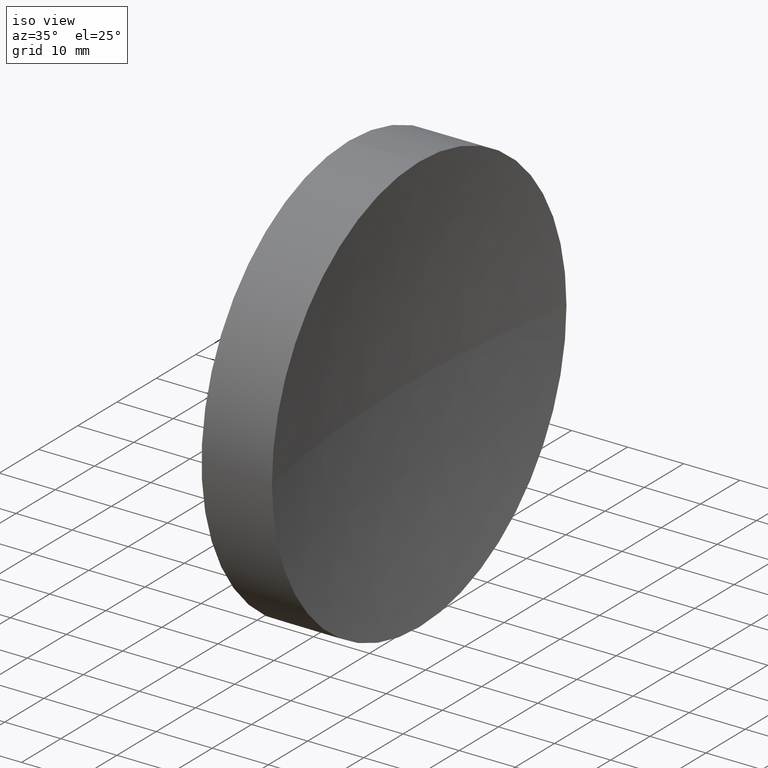
[diagram: clean part render]
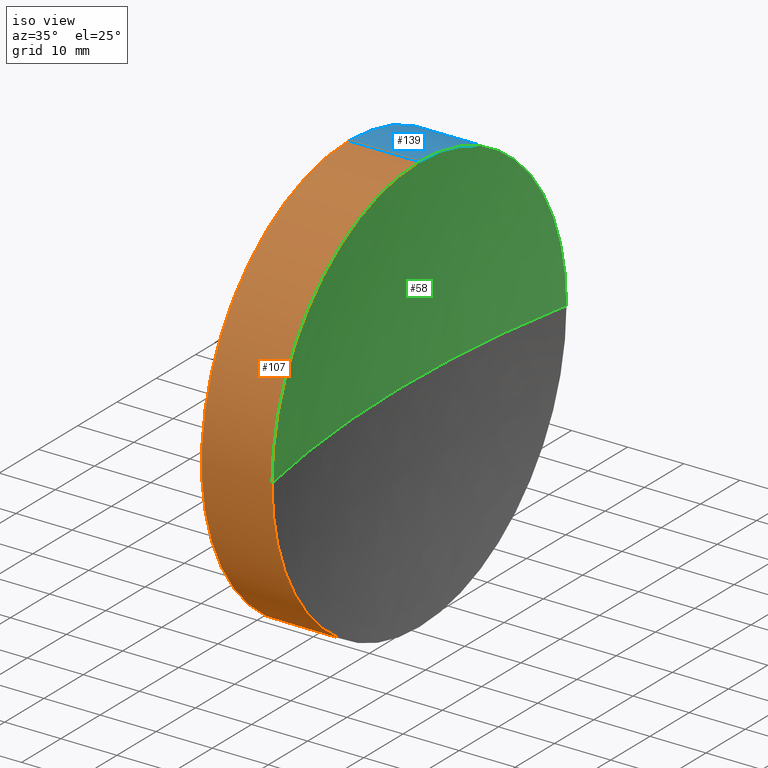
[diagram: same view with three faces highlighted in distinct colors, each labeled with its STEP entity id]
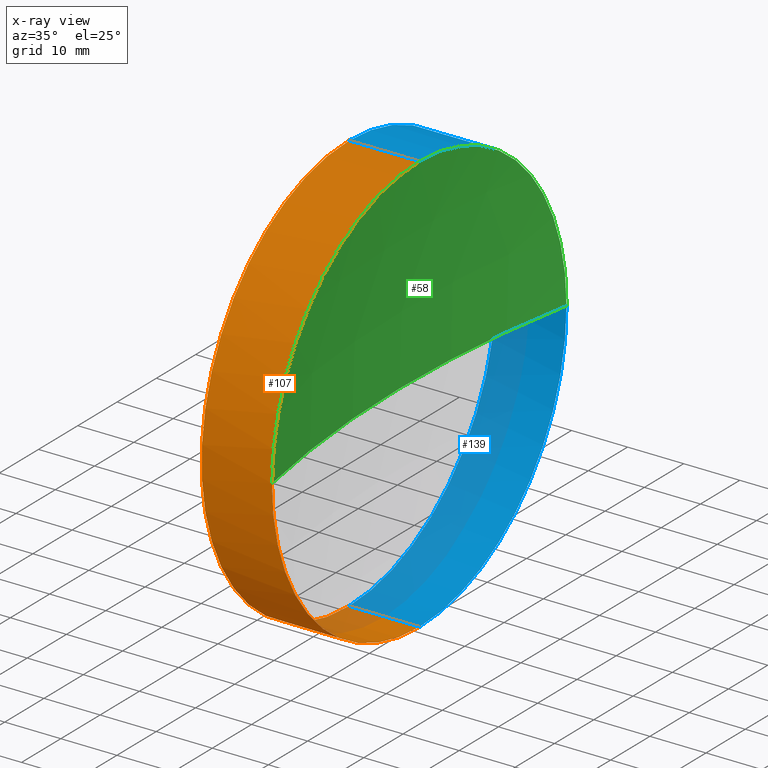
[diagram: x-ray of the same camera — body ghosted, the three highlighted faces saturated]
A machine part, iso view with three faces highlighted in distinct colors.
The next image is the same camera in x-ray (body ghosted, the three faces saturated) — at least one of them is partly hidden behind the body in this view.
Their STEP definitions:

[orange] entity #107 — the highlighted cylindrical surface (partial cylindrical patch) has radius 37.5 mm, axis along (-1, -0, -0).
#4 = DIRECTION ( 'NONE',  ( -1.000000000000000000, -0.0000000000000000000, -0.0000000000000000000 ) ) ;
#6 = DIRECTION ( 'NONE',  ( 0.0000000000000000000, 0.0000000000000000000, 1.000000000000000000 ) ) ;
#8 = VERTEX_POINT ( 'NONE', #102 ) ;
#12 = CIRCLE ( 'NONE', #125, 37.50000000000000700 ) ;
#13 = VERTEX_POINT ( 'NONE', #62 ) ;
#20 = CARTESIAN_POINT ( 'NONE',  ( 217.9702860043302100, 138.7560422467448700, 37.50000000000000700 ) ) ;
#23 = VERTEX_POINT ( 'NONE', #99 ) ;
#28 = CARTESIAN_POINT ( 'NONE',  ( 242.7466913625733000, 138.7560422467448700, 0.0000000000000000000 ) ) ;
#34 = DIRECTION ( 'NONE',  ( 0.0000000000000000000, 0.0000000000000000000, 1.000000000000000000 ) ) ;
#35 = CARTESIAN_POINT ( 'NONE',  ( 230.1996119052661200, 138.7560422467448700, 37.50000000000000700 ) ) ;
#36 = AXIS2_PLACEMENT_3D ( 'NONE', #144, #4, #34 ) ;
#38 = ORIENTED_EDGE ( 'NONE', *, *, #142, .T. ) ;
#41 = DIRECTION ( 'NONE',  ( -1.000000000000000000, -0.0000000000000000000, -0.0000000000000000000 ) ) ;
#44 = CIRCLE ( 'NONE', #36, 37.50000000000000700 ) ;
#47 = EDGE_LOOP ( 'NONE', ( #109, #171, #38, #126, #140 ) ) ;
#50 = AXIS2_PLACEMENT_3D ( 'NONE', #147, #72, #178 ) ;
#56 = DIRECTION ( 'NONE',  ( -1.000000000000000000, -0.0000000000000000000, -0.0000000000000000000 ) ) ;
#57 = EDGE_CURVE ( 'NONE', #13, #162, #165, .T. ) ;
#59 = AXIS2_PLACEMENT_3D ( 'NONE', #157, #56, #175 ) ;
#62 = CARTESIAN_POINT ( 'NONE',  ( 242.7466913625733000, 138.7560422467448700, 37.50000000000000700 ) ) ;
#63 = VERTEX_POINT ( 'NONE', #101 ) ;
#68 = VECTOR ( 'NONE', #112, 1000.000000000000000 ) ;
#72 = DIRECTION ( 'NONE',  ( -1.000000000000000000, -0.0000000000000000000, -0.0000000000000000000 ) ) ;
#96 = CARTESIAN_POINT ( 'NONE',  ( 217.9702860043302100, 138.7560422467448700, -37.50000000000000700 ) ) ;
#99 = CARTESIAN_POINT ( 'NONE',  ( 242.7466913625733000, 138.7560422467448700, -37.50000000000000700 ) ) ;
#101 = CARTESIAN_POINT ( 'NONE',  ( 242.7466913625733300, 101.2560422467446800, -4.592425496802582300E-015 ) ) ;
#102 = CARTESIAN_POINT ( 'NONE',  ( 230.1996119052661200, 138.7560422467448700, -37.50000000000000700 ) ) ;
#107 = ADVANCED_FACE ( 'NONE', ( #129 ), #164, .T. ) ;
#109 = ORIENTED_EDGE ( 'NONE', *, *, #173, .F. ) ;
#112 = DIRECTION ( 'NONE',  ( -1.000000000000000000, -0.0000000000000000000, -0.0000000000000000000 ) ) ;
#125 = AXIS2_PLACEMENT_3D ( 'NONE', #28, #41, #6 ) ;
#126 = ORIENTED_EDGE ( 'NONE', *, *, #57, .T. ) ;
#129 = FACE_OUTER_BOUND ( 'NONE', #47, .T. ) ;
#136 = DIRECTION ( 'NONE',  ( -1.000000000000000000, -0.0000000000000000000, -0.0000000000000000000 ) ) ;
#140 = ORIENTED_EDGE ( 'NONE', *, *, #153, .F. ) ;
#142 = EDGE_CURVE ( 'NONE', #63, #13, #12, .T. ) ;
#144 = CARTESIAN_POINT ( 'NONE',  ( 242.7466913625733000, 138.7560422467448700, 0.0000000000000000000 ) ) ;
#147 = CARTESIAN_POINT ( 'NONE',  ( 217.9702860043302100, 138.7560422467448700, 0.0000000000000000000 ) ) ;
#152 = LINE ( 'NONE', #96, #68 ) ;
#153 = EDGE_CURVE ( 'NONE', #8, #162, #168, .T. ) ;
#157 = CARTESIAN_POINT ( 'NONE',  ( 230.1996119052661200, 138.7560422467448700, 0.0000000000000000000 ) ) ;
#161 = EDGE_CURVE ( 'NONE', #23, #63, #44, .T. ) ;
#162 = VERTEX_POINT ( 'NONE', #35 ) ;
#164 = CYLINDRICAL_SURFACE ( 'NONE', #50, 37.50000000000000700 ) ;
#165 = LINE ( 'NONE', #20, #169 ) ;
#168 = CIRCLE ( 'NONE', #59, 37.50000000000000700 ) ;
#169 = VECTOR ( 'NONE', #136, 1000.000000000000000 ) ;
#171 = ORIENTED_EDGE ( 'NONE', *, *, #161, .T. ) ;
#173 = EDGE_CURVE ( 'NONE', #23, #8, #152, .T. ) ;
#175 = DIRECTION ( 'NONE',  ( 0.0000000000000000000, 0.0000000000000000000, 1.000000000000000000 ) ) ;
#178 = DIRECTION ( 'NONE',  ( 0.0000000000000000000, 0.0000000000000000000, 1.000000000000000000 ) ) ;

[blue] entity #139 — the highlighted cylindrical surface (partial cylindrical patch) has radius 37.5 mm, axis along (-1, -0, -0).
#8 = VERTEX_POINT ( 'NONE', #102 ) ;
#13 = VERTEX_POINT ( 'NONE', #62 ) ;
#18 = DIRECTION ( 'NONE',  ( -1.000000000000000000, -0.0000000000000000000, -0.0000000000000000000 ) ) ;
#20 = CARTESIAN_POINT ( 'NONE',  ( 217.9702860043302100, 138.7560422467448700, 37.50000000000000700 ) ) ;
#23 = VERTEX_POINT ( 'NONE', #99 ) ;
#27 = ORIENTED_EDGE ( 'NONE', *, *, #116, .T. ) ;
#35 = CARTESIAN_POINT ( 'NONE',  ( 230.1996119052661200, 138.7560422467448700, 37.50000000000000700 ) ) ;
#48 = CYLINDRICAL_SURFACE ( 'NONE', #179, 37.50000000000000700 ) ;
#54 = FACE_OUTER_BOUND ( 'NONE', #122, .T. ) ;
#55 = ORIENTED_EDGE ( 'NONE', *, *, #57, .F. ) ;
#57 = EDGE_CURVE ( 'NONE', #13, #162, #165, .T. ) ;
#62 = CARTESIAN_POINT ( 'NONE',  ( 242.7466913625733000, 138.7560422467448700, 37.50000000000000700 ) ) ;
#67 = CIRCLE ( 'NONE', #104, 37.50000000000000700 ) ;
#68 = VECTOR ( 'NONE', #112, 1000.000000000000000 ) ;
#70 = DIRECTION ( 'NONE',  ( -1.000000000000000000, -0.0000000000000000000, -0.0000000000000000000 ) ) ;
#81 = DIRECTION ( 'NONE',  ( 0.0000000000000000000, 0.0000000000000000000, 1.000000000000000000 ) ) ;
#87 = CARTESIAN_POINT ( 'NONE',  ( 230.1996119052661200, 138.7560422467448700, 0.0000000000000000000 ) ) ;
#89 = VERTEX_POINT ( 'NONE', #181 ) ;
#93 = DIRECTION ( 'NONE',  ( 0.0000000000000000000, 0.0000000000000000000, 1.000000000000000000 ) ) ;
#95 = EDGE_CURVE ( 'NONE', #162, #8, #123, .T. ) ;
#96 = CARTESIAN_POINT ( 'NONE',  ( 217.9702860043302100, 138.7560422467448700, -37.50000000000000700 ) ) ;
#99 = CARTESIAN_POINT ( 'NONE',  ( 242.7466913625733000, 138.7560422467448700, -37.50000000000000700 ) ) ;
#100 = AXIS2_PLACEMENT_3D ( 'NONE', #110, #70, #145 ) ;
#102 = CARTESIAN_POINT ( 'NONE',  ( 230.1996119052661200, 138.7560422467448700, -37.50000000000000700 ) ) ;
#104 = AXIS2_PLACEMENT_3D ( 'NONE', #176, #174, #81 ) ;
#110 = CARTESIAN_POINT ( 'NONE',  ( 242.7466913625733000, 138.7560422467448700, 0.0000000000000000000 ) ) ;
#112 = DIRECTION ( 'NONE',  ( -1.000000000000000000, -0.0000000000000000000, -0.0000000000000000000 ) ) ;
#116 = EDGE_CURVE ( 'NONE', #89, #23, #155, .T. ) ;
#122 = EDGE_LOOP ( 'NONE', ( #27, #184, #186, #55, #143 ) ) ;
#123 = CIRCLE ( 'NONE', #170, 37.50000000000000700 ) ;
#132 = DIRECTION ( 'NONE',  ( -1.000000000000000000, -0.0000000000000000000, -0.0000000000000000000 ) ) ;
#135 = EDGE_CURVE ( 'NONE', #13, #89, #67, .T. ) ;
#136 = DIRECTION ( 'NONE',  ( -1.000000000000000000, -0.0000000000000000000, -0.0000000000000000000 ) ) ;
#139 = ADVANCED_FACE ( 'NONE', ( #54 ), #48, .T. ) ;
#143 = ORIENTED_EDGE ( 'NONE', *, *, #135, .T. ) ;
#145 = DIRECTION ( 'NONE',  ( 0.0000000000000000000, 0.0000000000000000000, 1.000000000000000000 ) ) ;
#152 = LINE ( 'NONE', #96, #68 ) ;
#155 = CIRCLE ( 'NONE', #100, 37.50000000000000700 ) ;
#159 = DIRECTION ( 'NONE',  ( 0.0000000000000000000, 0.0000000000000000000, 1.000000000000000000 ) ) ;
#162 = VERTEX_POINT ( 'NONE', #35 ) ;
#165 = LINE ( 'NONE', #20, #169 ) ;
#169 = VECTOR ( 'NONE', #136, 1000.000000000000000 ) ;
#170 = AXIS2_PLACEMENT_3D ( 'NONE', #87, #18, #159 ) ;
#172 = CARTESIAN_POINT ( 'NONE',  ( 217.9702860043302100, 138.7560422467448700, 0.0000000000000000000 ) ) ;
#173 = EDGE_CURVE ( 'NONE', #23, #8, #152, .T. ) ;
#174 = DIRECTION ( 'NONE',  ( -1.000000000000000000, -0.0000000000000000000, -0.0000000000000000000 ) ) ;
#176 = CARTESIAN_POINT ( 'NONE',  ( 242.7466913625733000, 138.7560422467448700, 0.0000000000000000000 ) ) ;
#179 = AXIS2_PLACEMENT_3D ( 'NONE', #172, #132, #93 ) ;
#181 = CARTESIAN_POINT ( 'NONE',  ( 242.7466913625733300, 176.2560422467449500, 0.0000000000000000000 ) ) ;
#184 = ORIENTED_EDGE ( 'NONE', *, *, #173, .T. ) ;
#186 = ORIENTED_EDGE ( 'NONE', *, *, #95, .F. ) ;

[green] entity #58 — the highlighted spherical surface has radius 200 mm.
#6 = DIRECTION ( 'NONE',  ( 0.0000000000000000000, 0.0000000000000000000, 1.000000000000000000 ) ) ;
#9 = DIRECTION ( 'NONE',  ( 0.0000000000000000000, 1.224646799147353200E-016, -1.000000000000000000 ) ) ;
#12 = CIRCLE ( 'NONE', #125, 37.50000000000000700 ) ;
#13 = VERTEX_POINT ( 'NONE', #62 ) ;
#19 = ORIENTED_EDGE ( 'NONE', *, *, #69, .F. ) ;
#28 = CARTESIAN_POINT ( 'NONE',  ( 242.7466913625733000, 138.7560422467448700, 0.0000000000000000000 ) ) ;
#39 = ORIENTED_EDGE ( 'NONE', *, *, #135, .F. ) ;
#41 = DIRECTION ( 'NONE',  ( -1.000000000000000000, -0.0000000000000000000, -0.0000000000000000000 ) ) ;
#46 = CARTESIAN_POINT ( 'NONE',  ( 239.1996119313446300, 138.7560422467447600, 0.0000000000000000000 ) ) ;
#49 = SPHERICAL_SURFACE ( 'NONE', #131, 200.0000000000000000 ) ;
#51 = ORIENTED_EDGE ( 'NONE', *, *, #142, .F. ) ;
#58 = ADVANCED_FACE ( 'NONE', ( #86 ), #49, .F. ) ;
#62 = CARTESIAN_POINT ( 'NONE',  ( 242.7466913625733000, 138.7560422467448700, 37.50000000000000700 ) ) ;
#63 = VERTEX_POINT ( 'NONE', #101 ) ;
#65 = AXIS2_PLACEMENT_3D ( 'NONE', #120, #66, #166 ) ;
#66 = DIRECTION ( 'NONE',  ( 0.0000000000000000000, 0.0000000000000000000, 1.000000000000000000 ) ) ;
#67 = CIRCLE ( 'NONE', #104, 37.50000000000000700 ) ;
#69 = EDGE_CURVE ( 'NONE', #89, #74, #130, .T. ) ;
#74 = VERTEX_POINT ( 'NONE', #46 ) ;
#78 = EDGE_CURVE ( 'NONE', #63, #74, #124, .T. ) ;
#81 = DIRECTION ( 'NONE',  ( 0.0000000000000000000, 0.0000000000000000000, 1.000000000000000000 ) ) ;
#86 = FACE_OUTER_BOUND ( 'NONE', #150, .T. ) ;
#89 = VERTEX_POINT ( 'NONE', #181 ) ;
#90 = AXIS2_PLACEMENT_3D ( 'NONE', #91, #9, #106 ) ;
#91 = CARTESIAN_POINT ( 'NONE',  ( 439.1996119313446300, 138.7560422467447600, 0.0000000000000000000 ) ) ;
#101 = CARTESIAN_POINT ( 'NONE',  ( 242.7466913625733300, 101.2560422467446800, -4.592425496802582300E-015 ) ) ;
#103 = ORIENTED_EDGE ( 'NONE', *, *, #78, .T. ) ;
#104 = AXIS2_PLACEMENT_3D ( 'NONE', #176, #174, #81 ) ;
#106 = DIRECTION ( 'NONE',  ( 0.0000000000000000000, 1.000000000000000000, 1.224646799147353200E-016 ) ) ;
#120 = CARTESIAN_POINT ( 'NONE',  ( 439.1996119313446300, 138.7560422467447600, 0.0000000000000000000 ) ) ;
#124 = CIRCLE ( 'NONE', #90, 200.0000000000000000 ) ;
#125 = AXIS2_PLACEMENT_3D ( 'NONE', #28, #41, #6 ) ;
#130 = CIRCLE ( 'NONE', #65, 200.0000000000000000 ) ;
#131 = AXIS2_PLACEMENT_3D ( 'NONE', #148, #180, #151 ) ;
#135 = EDGE_CURVE ( 'NONE', #13, #89, #67, .T. ) ;
#142 = EDGE_CURVE ( 'NONE', #63, #13, #12, .T. ) ;
#148 = CARTESIAN_POINT ( 'NONE',  ( 439.1996119313446300, 138.7560422467447600, 0.0000000000000000000 ) ) ;
#150 = EDGE_LOOP ( 'NONE', ( #51, #103, #19, #39 ) ) ;
#151 = DIRECTION ( 'NONE',  ( 0.0000000000000000000, 1.000000000000000000, 0.0000000000000000000 ) ) ;
#166 = DIRECTION ( 'NONE',  ( 1.000000000000000000, 0.0000000000000000000, 0.0000000000000000000 ) ) ;
#174 = DIRECTION ( 'NONE',  ( -1.000000000000000000, -0.0000000000000000000, -0.0000000000000000000 ) ) ;
#176 = CARTESIAN_POINT ( 'NONE',  ( 242.7466913625733000, 138.7560422467448700, 0.0000000000000000000 ) ) ;
#180 = DIRECTION ( 'NONE',  ( 0.0000000000000000000, 0.0000000000000000000, -1.000000000000000000 ) ) ;
#181 = CARTESIAN_POINT ( 'NONE',  ( 242.7466913625733300, 176.2560422467449500, 0.0000000000000000000 ) ) ;